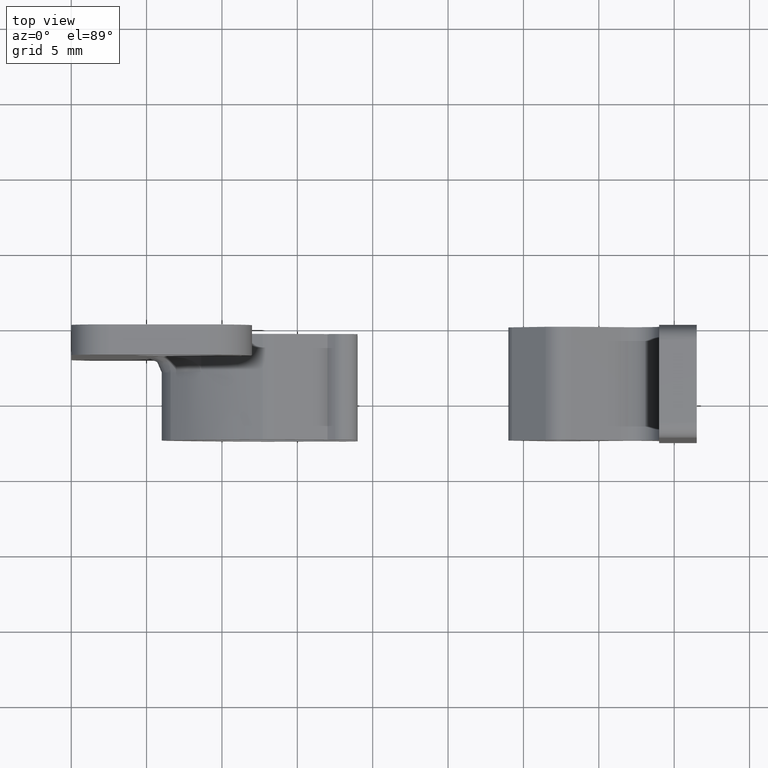
[diagram: clean part render]
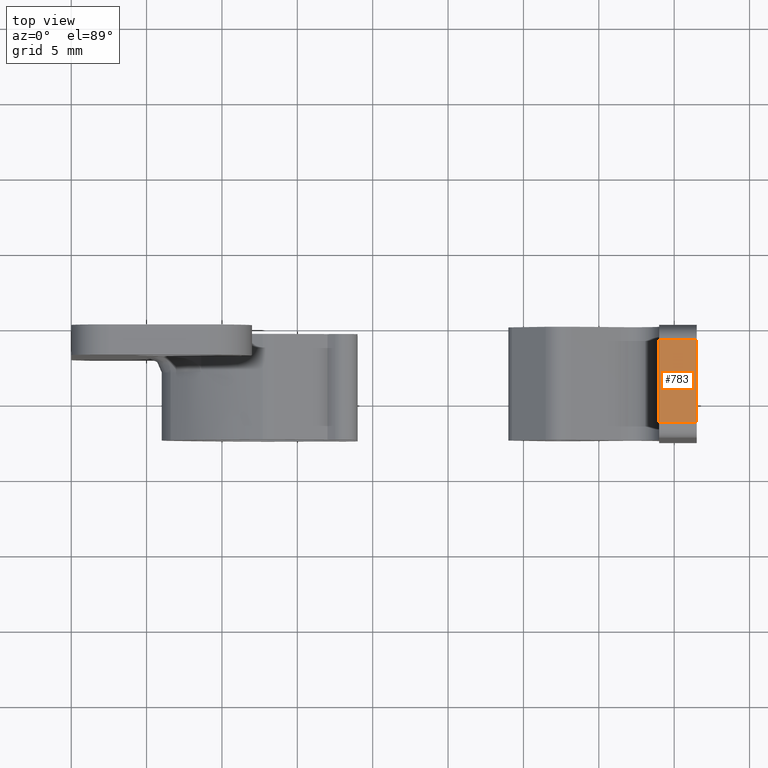
[diagram: same view with one face highlighted and labeled with its STEP entity id]
A machine part, top view. The second image highlights one B-rep face of the part: STEP entity #783.
In plain terms, the highlighted face is a freeform B-spline surface patch.
Its self-contained STEP definition (entity closure, byte-faithful):
#534=CARTESIAN_POINT('',(21.500000000000000,-2.750000000000000,11.0));
#535=VERTEX_POINT('',#534);
#551=CARTESIAN_POINT('',(19.0,-2.750000000000000,11.0));
#552=VERTEX_POINT('',#551);
#553=CARTESIAN_POINT('',(19.0,-2.750000000000000,11.0));
#554=CARTESIAN_POINT('',(21.500000000000000,-2.750000000000000,11.0));
#555=QUASI_UNIFORM_CURVE('',1,(#553,#554),.UNSPECIFIED.,.F.,.U.);
#556=EDGE_CURVE('',#552,#535,#555,.T.);
#597=CARTESIAN_POINT('',(21.500000000000000,2.750000000000000,11.0));
#598=VERTEX_POINT('',#597);
#619=CARTESIAN_POINT('',(19.0,2.750000000000000,11.0));
#620=VERTEX_POINT('',#619);
#634=CARTESIAN_POINT('',(21.500000000000000,2.750000000000000,11.0));
#635=CARTESIAN_POINT('',(19.0,2.750000000000000,11.0));
#636=QUASI_UNIFORM_CURVE('',1,(#634,#635),.UNSPECIFIED.,.F.,.U.);
#637=EDGE_CURVE('',#598,#620,#636,.T.);
#764=CARTESIAN_POINT('',(18.875125004845479,-3.024724989339933,11.0));
#765=CARTESIAN_POINT('',(21.624875062209739,-3.024724989339933,11.0));
#766=CARTESIAN_POINT('',(18.875125004845479,3.024725136861429,11.0));
#767=CARTESIAN_POINT('',(21.624875062209739,3.024725136861429,11.0));
#768=B_SPLINE_SURFACE_WITH_KNOTS('',1,1,((#764,#766),(#765,#767)),.UNSPECIFIED.,.F.,.F.,.U.,(2,2),(2,2),(0.0,2.749750057364260),(0.0,6.049450126201362),.UNSPECIFIED.);
#769=CARTESIAN_POINT('',(21.500000000000000,2.750000000000000,11.0));
#770=CARTESIAN_POINT('',(21.500000000000000,-2.750000000000000,11.0));
#771=QUASI_UNIFORM_CURVE('',1,(#769,#770),.UNSPECIFIED.,.F.,.U.);
#772=EDGE_CURVE('',#598,#535,#771,.T.);
#773=ORIENTED_EDGE('',*,*,#772,.F.);
#774=ORIENTED_EDGE('',*,*,#637,.T.);
#775=CARTESIAN_POINT('',(19.0,2.750000000000000,11.0));
#776=CARTESIAN_POINT('',(19.0,-2.750000000000000,11.0));
#777=QUASI_UNIFORM_CURVE('',1,(#775,#776),.UNSPECIFIED.,.F.,.U.);
#778=EDGE_CURVE('',#620,#552,#777,.T.);
#779=ORIENTED_EDGE('',*,*,#778,.T.);
#780=ORIENTED_EDGE('',*,*,#556,.T.);
#781=EDGE_LOOP('',(#773,#774,#779,#780));
#782=FACE_OUTER_BOUND('',#781,.T.);
#783=ADVANCED_FACE('',(#782),#768,.T.);